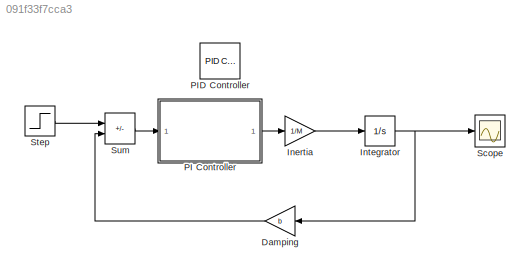
MODEL slx_091f33f7cca3
KIND model
CONFIG AbsTol = auto
CONFIG EnableMultiTasking = off
CONFIG FixedStep = auto
CONFIG MaxStep = auto
CONFIG MinStep = auto
CONFIG RelTol = 1e-3
CONFIG SampleTimeConstraint = Unconstrained
CONFIG SolverName = ode45
CONFIG StartTime = 0.0
CONFIG StopTime = 120
BLOCK [Gain] Damping
  Gain = b
  NameLocation = top
BLOCK [Gain] Inertia
  Gain = 1/M
BLOCK [Integrator] Integrator
  Ports = [1, 1]
BLOCK [ModelReference] PI Controller
  ModelNameDialog = PI_Controller
  ModelReferenceVersion = 1.9
  Ports = [1, 1]
BLOCK [Reference] PID Controller  REF=pid_lib/PID Controller
  Ports = [1, 1]
  SourceBlock = pid_lib/PID Controller
  SourceProductBaseCode = SL
  SourceType = PID 1dof
BLOCK [Scope] Scope
  Floating = off
  NumInputPorts = 1
  Ports = [1]
  ScopeSpecificationString = Simulink.scopes.TimeScopeBlockCfg('CurrentConfiguration', extmgr.ConfigurationSet(extmgr.Configuration('Core','General UI',true),extmgr.Configuration('Core','Source UI',true),extmgr.Configuration('Sources','WiredSimulink',true),extmgr.Configuration('Visuals','Time Domain',true,'SerializedDisplays',{struct('MinYLimReal','-1.25019','MaxYLimReal','11.2517','YLabelReal','','MinYLimMag','0.00000','MaxY...<+1381ch>
BLOCK [Step] Step
  After = u
  SampleTime = 0
BLOCK [Sum] Sum
  IconShape = rectangular
  Inputs = +-
  Ports = [2, 1]
LINE Damping:1 -> Sum:2
LINE Inertia:1 -> Integrator:1
NET Integrator:1 -> Damping:1, Scope:1
LINE PI Controller:1 -> Inertia:1
LINE Step:1 -> Sum:1
LINE Sum:1 -> PI Controller:1
note: NET lines group one-source signal fan-out (src -> all destinations, sorted); 1:1 wires keep LINE
